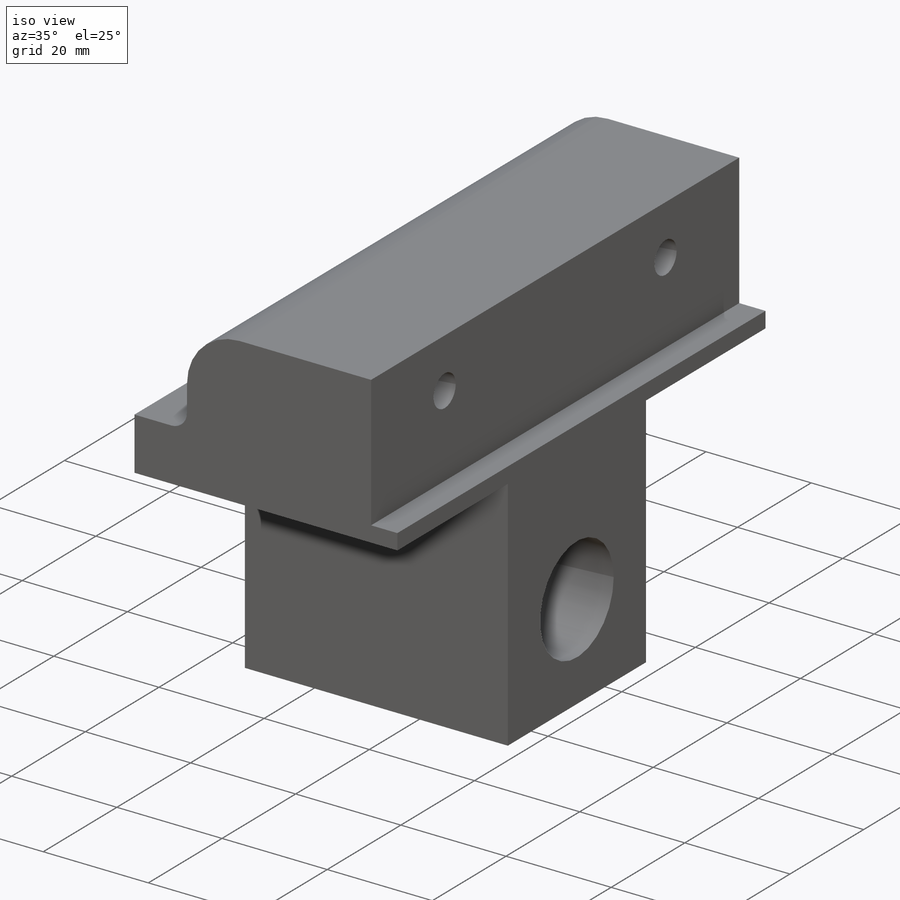
[diagram: iso view]
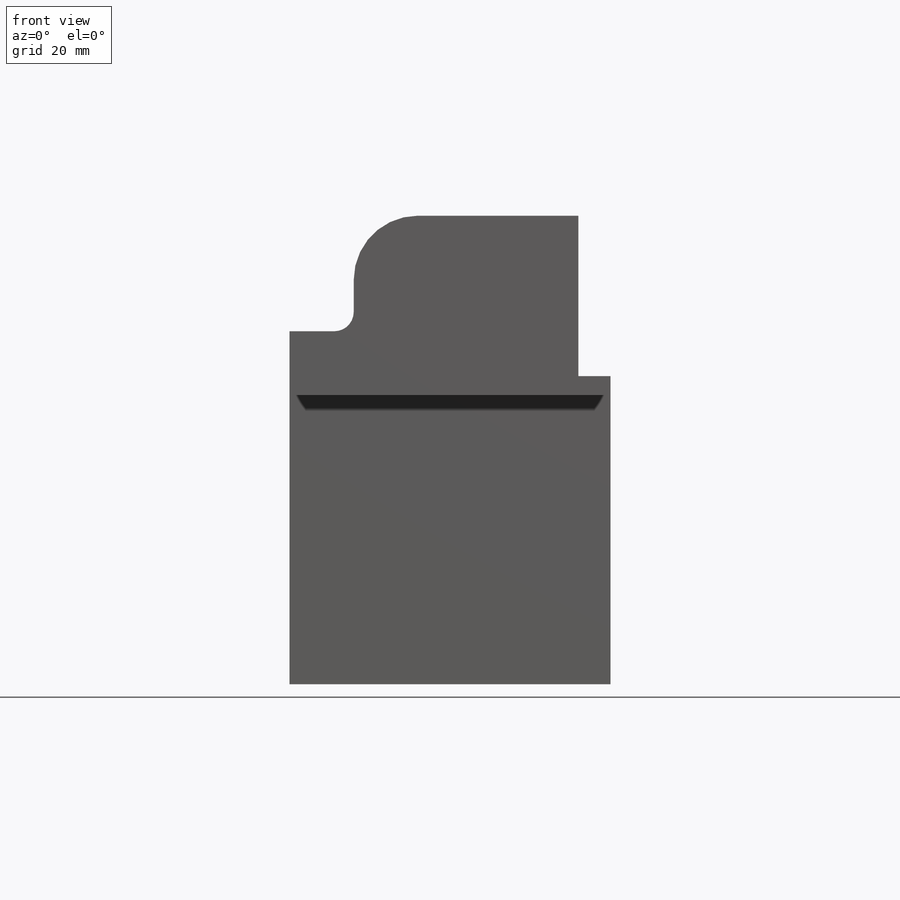
[diagram: front view]
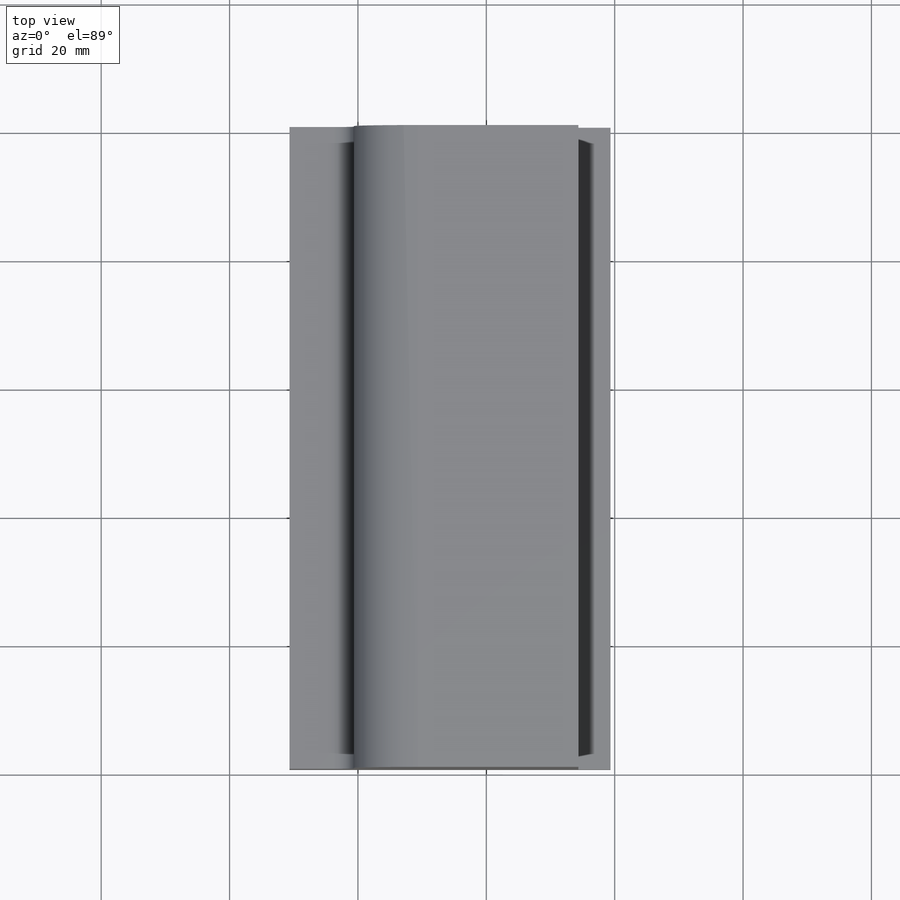
[diagram: top view]
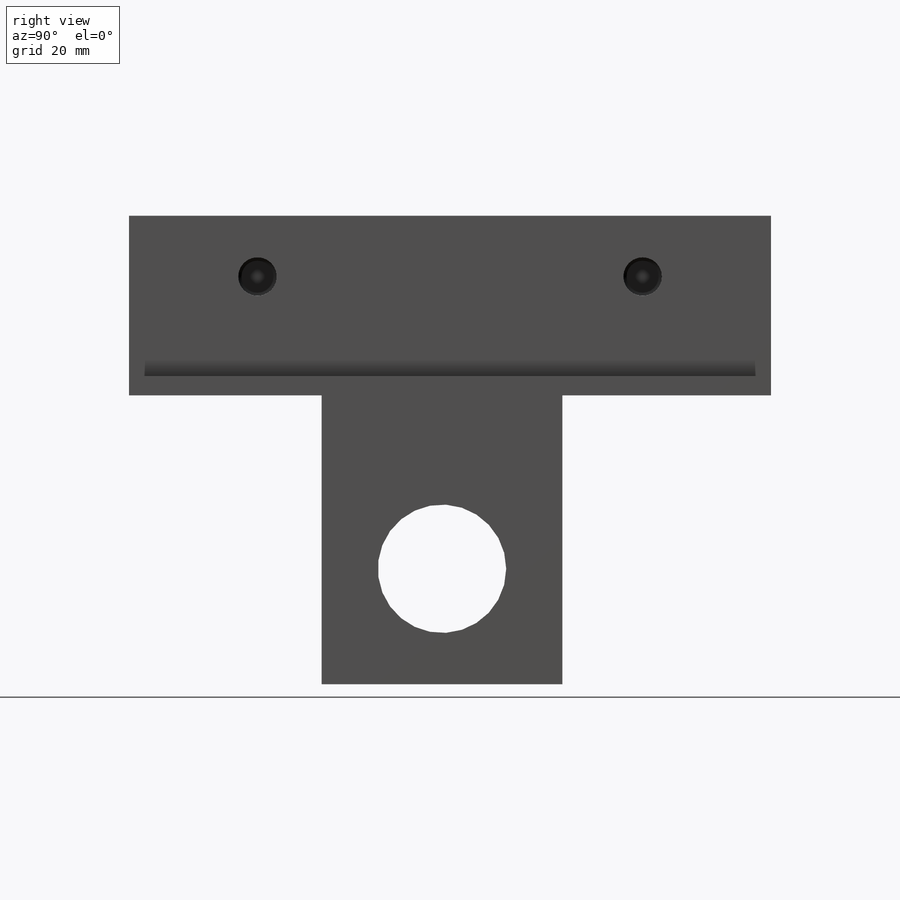
[diagram: right view]
SOLIDWORKS PART (.sldprt)
format: sldprt  version: not decoded by parser v0  size: 276,992 bytes
history: native  units: mm
features: sketch x8, cut_extrude x7, fillet x3, material x1, extrude x1 (+13 scaffold rows collapsed)
feature tree (33):
  scaffold x13  (default folders/planes/origin — collapsed)
  material  "Material <not specified>"
  sketch  "Sketch2"  dims[c1.D8=3.0mm c1.D9=10.0mm c1.D1=5.0mm c1.D2=50.0mm c1.D3=35.0mm c1.D4=25.0mm c1.D5=10.0mm c1.D6=45.0mm c2.D4=3.0mm c2.D7=25.0mm]
  extrude  "Boss-Extrude1"  Depth=100mm
  sketch  "Sketch3"  dims[D1=3.0mm]
  cut_extrude  "Cut-Extrude5"  [1 undecoded]
  sketch  "Sketch7"  dims[D1=20.0mm]
  cut_extrude  "Cut-Extrude7"  [1 undecoded]
  sketch  "Sketch8"  dims[D2=20.0mm D1=18.0mm]
  cut_extrude  "Cut-Extrude8"  [1 undecoded]
  sketch  "Sketch9"  dims[c1.D3=5.0mm c1.D4=5.0mm c1.D1=15.5mm c1.D2=~27.055087mm c2.D2=90.0deg c3.D2=30.0mm]
  cut_extrude  "Cut-Extrude9"  Depth=13mm
  sketch  "Sketch10"  dims[D1=6.0mm]
  cut_extrude  "Cut-Extrude10"  Depth=10mm
  fillet  "Fillet1"  Radius=1mm
  fillet  "Fillet2"  Radius=1mm
  sketch  "Sketch11"  dims[c1.D3=5.0mm c1.D1=12.0mm c1.D2=~25.804349mm c2.D1=10.0mm c2.D2=25.0mm]
  cut_extrude  "Cut-Extrude11"  Depth=13mm
  sketch  "Sketch12"  dims[D1=6.0mm]
  cut_extrude  "Cut-Extrude12"  Depth=10mm
  fillet  "Fillet3"  Radius=1mm
decode coverage: 16 of 19 modeling features carry decoded parameters
note: ~ marks probable driven/reference dimensions
note: 3 parameter values undecoded
summary: no parameter record found for 3 features
note: suppression state not decoded; provenance and decode notes live in map.json
